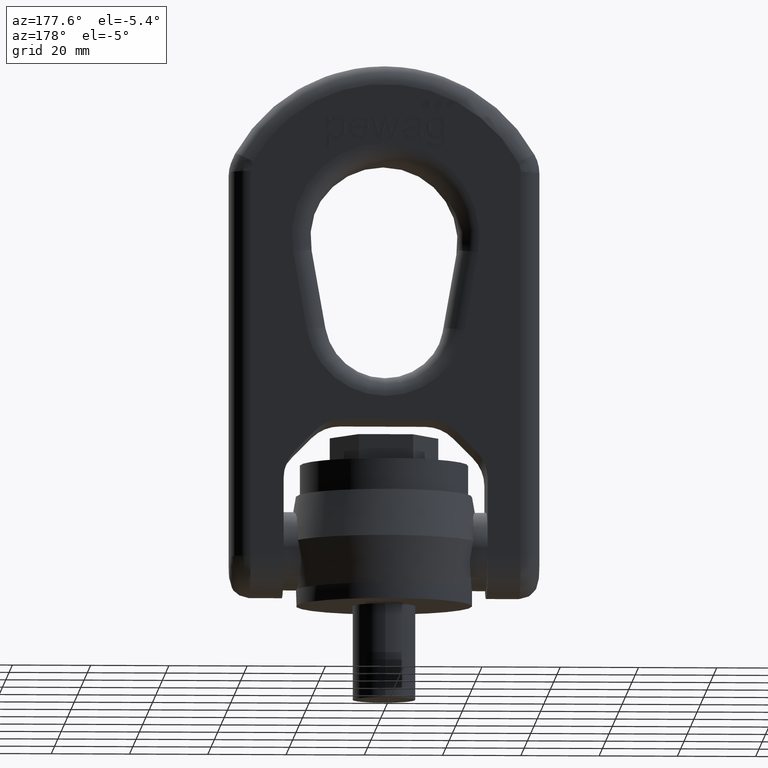
[diagram: clean part render]
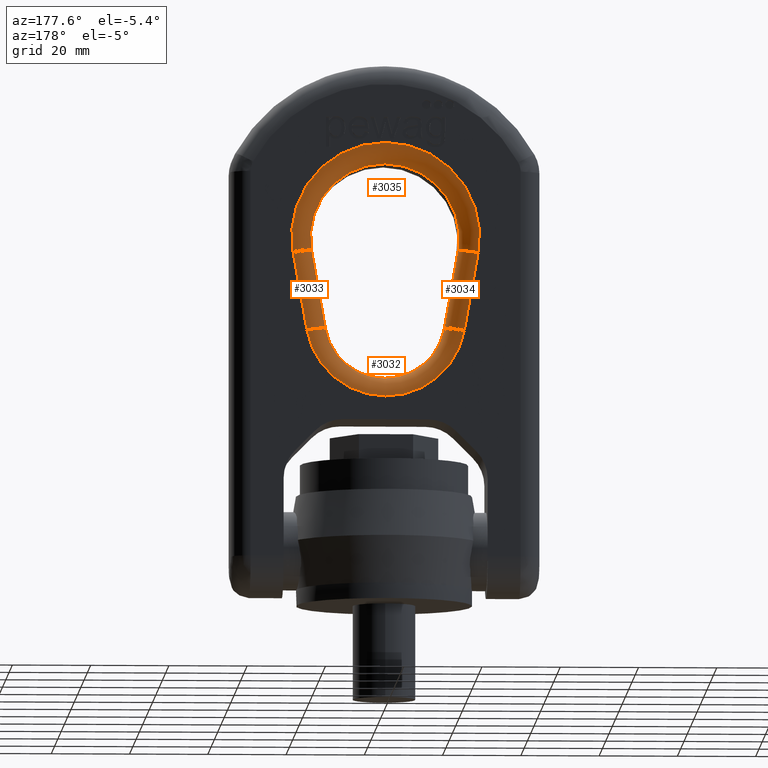
[diagram: same view with one multi-face feature highlighted, each face labeled with its STEP entity id]
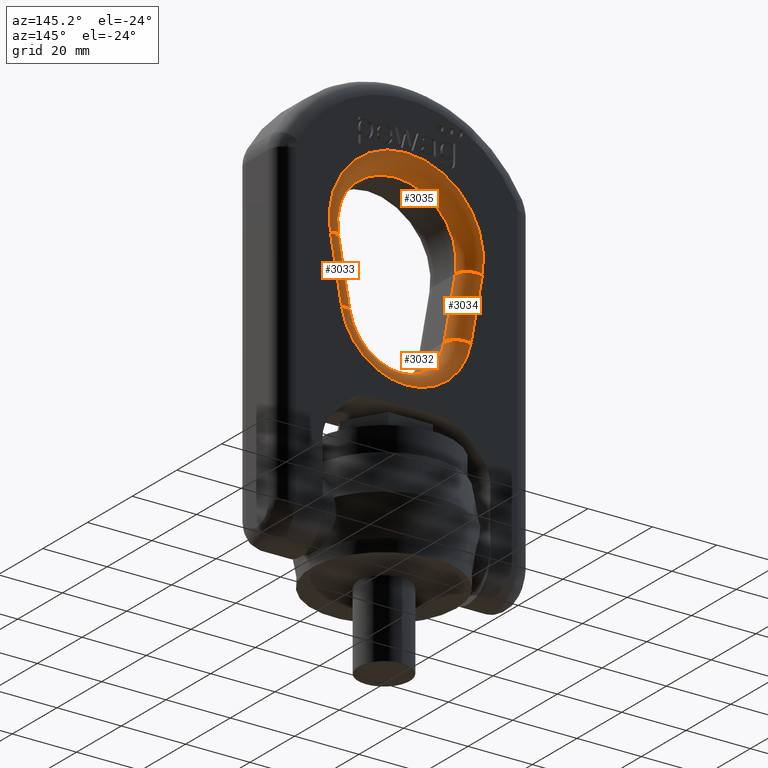
[diagram: same view with one multi-face feature highlighted, each face labeled with its STEP entity id]
A machine part, auxiliary view. The highlighted faces form ONE feature: a constant-radius fillet chain: 4 tangent blend faces with common blend radius 5 mm. The faces share edges in the B-rep.
A second angle (auxiliary view) of the same feature is appended — it is thin or edge-on in the first view.
Their STEP definitions:
[1] entity #3032 (Torus):
#203=TOROIDAL_SURFACE('',#6050,20.4276486835797,5.);
#2657=FACE_OUTER_BOUND('',#3425,.T.);
#3032=ADVANCED_FACE('',(#2657),#203,.T.);
#3425=EDGE_LOOP('',(#4665,#4666,#4667,#4668));
#4665=ORIENTED_EDGE('',*,*,#5741,.F.);
#4666=ORIENTED_EDGE('',*,*,#5372,.F.);
#4667=ORIENTED_EDGE('',*,*,#5742,.F.);
#4668=ORIENTED_EDGE('',*,*,#5266,.F.);
#4827=VERTEX_POINT('',#7396);
#4830=VERTEX_POINT('',#7401);
#4912=VERTEX_POINT('',#7723);
#4917=VERTEX_POINT('',#7737);
#5266=EDGE_CURVE('',#4830,#4827,#5776,.T.);
#5372=EDGE_CURVE('',#4917,#4912,#5793,.T.);
#5741=EDGE_CURVE('',#4912,#4830,#5819,.T.);
#5742=EDGE_CURVE('',#4827,#4917,#5820,.T.);
#5776=CIRCLE('',#5883,20.4276486835797);
#5793=CIRCLE('',#5907,15.4276486835797);
#5819=CIRCLE('',#6048,5.);
#5820=CIRCLE('',#6049,5.);
#5883=AXIS2_PLACEMENT_3D('',#7402,#6264,#6265);
#5907=AXIS2_PLACEMENT_3D('',#7769,#6367,#6368);
#6048=AXIS2_PLACEMENT_3D('',#9829,#6904,#6905);
#6049=AXIS2_PLACEMENT_3D('',#9830,#6906,#6907);
#6050=AXIS2_PLACEMENT_3D('',#9831,#6908,#6909);
#6264=DIRECTION('',(-2.34291072916505E-15,-1.,0.));
#6265=DIRECTION('',(-1.,2.37777034840012E-15,0.));
#6367=DIRECTION('',(2.34291072916505E-15,1.,0.));
#6368=DIRECTION('',(-1.,2.3612926209738E-15,0.));
#6904=DIRECTION('',(-0.17364817766693,2.40985256287531E-16,0.984807753012208));
#6905=DIRECTION('',(0.984807753012208,0.,0.17364817766693));
#6906=DIRECTION('',(0.17364817766693,-3.61477884431297E-16,0.984807753012208));
#6907=DIRECTION('',(0.984807753012208,0.,-0.17364817766693));
#6908=DIRECTION('',(2.34291072916505E-15,1.,0.));
#6909=DIRECTION('',(-1.,2.35365686642696E-15,0.));
#7396=CARTESIAN_POINT('',(20.117306799399,9.99999999999995,69.8804247156558));
#7401=CARTESIAN_POINT('',(-20.117306799399,10.,69.8804247156558));
#7402=CARTESIAN_POINT('',(1.17145536458252E-14,10.,73.4276486835797));
#7723=CARTESIAN_POINT('',(-15.1932680343379,5.00000000000005,70.7486656039905));
#7737=CARTESIAN_POINT('',(15.1932680343379,4.99999999999998,70.7486656039905));
#7769=CARTESIAN_POINT('',(0.,5.00000000000001,73.4276486835797));
#9829=CARTESIAN_POINT('',(-20.117306799399,5.00000000000005,69.8804247156558));
#9830=CARTESIAN_POINT('',(20.117306799399,4.99999999999995,69.8804247156558));
#9831=CARTESIAN_POINT('',(0.,5.,73.4276486835797));
[2] entity #3033 (Cylinder):
#1815=LINE('',#7395,#2123);
#1861=LINE('',#7736,#2169);
#2123=VECTOR('',#6260,1.);
#2169=VECTOR('',#6340,1.);
#2658=FACE_OUTER_BOUND('',#3426,.T.);
#3033=ADVANCED_FACE('',(#2658),#3065,.T.);
#3065=CYLINDRICAL_SURFACE('',#6052,5.);
#3426=EDGE_LOOP('',(#4669,#4670,#4671,#4672));
#4669=ORIENTED_EDGE('',*,*,#5742,.T.);
#4670=ORIENTED_EDGE('',*,*,#5357,.F.);
#4671=ORIENTED_EDGE('',*,*,#5743,.F.);
#4672=ORIENTED_EDGE('',*,*,#5263,.F.);
#4827=VERTEX_POINT('',#7396);
#4828=VERTEX_POINT('',#7397);
#4915=VERTEX_POINT('',#7731);
#4917=VERTEX_POINT('',#7737);
#5263=EDGE_CURVE('',#4827,#4828,#1815,.T.);
#5357=EDGE_CURVE('',#4915,#4917,#1861,.T.);
#5742=EDGE_CURVE('',#4827,#4917,#5820,.T.);
#5743=EDGE_CURVE('',#4828,#4915,#5821,.T.);
#5820=CIRCLE('',#6049,5.);
#5821=CIRCLE('',#6051,5.);
#6049=AXIS2_PLACEMENT_3D('',#9830,#6906,#6907);
#6051=AXIS2_PLACEMENT_3D('',#9832,#6910,#6911);
#6052=AXIS2_PLACEMENT_3D('',#9833,#6912,#6913);
#6260=DIRECTION('',(0.17364817766693,-4.0684217855581E-16,0.984807753012208));
#6340=DIRECTION('',(-0.17364817766693,4.0684217855581E-16,-0.984807753012208));
#6906=DIRECTION('',(0.17364817766693,-3.61477884431297E-16,0.984807753012208));
#6907=DIRECTION('',(0.984807753012208,0.,-0.17364817766693));
#6910=DIRECTION('',(0.17364817766693,-3.61477884431297E-16,0.984807753012208));
#6911=DIRECTION('',(0.984807753012208,0.,-0.17364817766693));
#6912=DIRECTION('',(-0.17364817766693,4.0684217855581E-16,-0.984807753012208));
#6913=DIRECTION('',(-0.984807753012208,0.,0.17364817766693));
#7395=CARTESIAN_POINT('',(23.635386072293,9.99999999999994,89.8324437359937));
#7396=CARTESIAN_POINT('',(20.117306799399,9.99999999999995,69.8804247156558));
#7397=CARTESIAN_POINT('',(23.635386072293,9.99999999999994,89.8324437359937));
#7731=CARTESIAN_POINT('',(18.711347307232,4.99999999999994,90.7006846243283));
#7736=CARTESIAN_POINT('',(15.1932680343379,4.99999999999995,70.7486656039905));
#7737=CARTESIAN_POINT('',(15.1932680343379,4.99999999999998,70.7486656039905));
#9830=CARTESIAN_POINT('',(20.117306799399,4.99999999999995,69.8804247156558));
#9832=CARTESIAN_POINT('',(23.635386072293,4.99999999999994,89.8324437359937));
#9833=CARTESIAN_POINT('',(23.6858340434335,4.99999999999994,90.1185483975596));
[3] entity #3035 (Torus):
#204=TOROIDAL_SURFACE('',#6055,24.,5.);
#2660=FACE_OUTER_BOUND('',#3428,.T.);
#3035=ADVANCED_FACE('',(#2660),#204,.T.);
#3428=EDGE_LOOP('',(#4677,#4678,#4679,#4680));
#4677=ORIENTED_EDGE('',*,*,#5743,.T.);
#4678=ORIENTED_EDGE('',*,*,#5354,.F.);
#4679=ORIENTED_EDGE('',*,*,#5744,.T.);
#4680=ORIENTED_EDGE('',*,*,#5264,.F.);
#4828=VERTEX_POINT('',#7397);
#4829=VERTEX_POINT('',#7399);
#4913=VERTEX_POINT('',#7725);
#4915=VERTEX_POINT('',#7731);
#5264=EDGE_CURVE('',#4828,#4829,#5775,.T.);
#5354=EDGE_CURVE('',#4913,#4915,#5787,.T.);
#5743=EDGE_CURVE('',#4828,#4915,#5821,.T.);
#5744=EDGE_CURVE('',#4913,#4829,#5822,.T.);
#5775=CIRCLE('',#5882,24.);
#5787=CIRCLE('',#5896,19.);
#5821=CIRCLE('',#6051,5.);
#5822=CIRCLE('',#6053,5.);
#5882=AXIS2_PLACEMENT_3D('',#7398,#6261,#6262);
#5896=AXIS2_PLACEMENT_3D('',#7730,#6333,#6334);
#6051=AXIS2_PLACEMENT_3D('',#9832,#6910,#6911);
#6053=AXIS2_PLACEMENT_3D('',#9834,#6914,#6915);
#6055=AXIS2_PLACEMENT_3D('',#9836,#6918,#6919);
#6261=DIRECTION('',(-2.34291072916505E-15,-1.,0.));
#6262=DIRECTION('',(-1.,2.31296463463574E-15,0.));
#6333=DIRECTION('',(2.34291072916505E-15,1.,0.));
#6334=DIRECTION('',(-1.,2.32818150723203E-15,0.));
#6910=DIRECTION('',(0.17364817766693,-3.61477884431297E-16,0.984807753012208));
#6911=DIRECTION('',(0.984807753012208,0.,-0.17364817766693));
#6914=DIRECTION('',(-0.17364817766693,2.40985256287532E-16,0.984807753012208));
#6915=DIRECTION('',(0.984807753012208,0.,0.17364817766693));
#6918=DIRECTION('',(2.34291072916505E-15,1.,0.));
#6919=DIRECTION('',(-1.,2.33290398493433E-15,0.));
#7397=CARTESIAN_POINT('',(23.635386072293,9.99999999999994,89.8324437359937));
#7398=CARTESIAN_POINT('',(1.17145536458252E-14,10.,94.));
#7399=CARTESIAN_POINT('',(-23.635386072293,10.0000000000001,89.8324437359937));
#7725=CARTESIAN_POINT('',(-18.711347307232,5.00000000000006,90.7006846243283));
#7730=CARTESIAN_POINT('',(0.,4.99999999999999,94.));
#7731=CARTESIAN_POINT('',(18.711347307232,4.99999999999994,90.7006846243283));
#9832=CARTESIAN_POINT('',(23.635386072293,4.99999999999994,89.8324437359937));
#9834=CARTESIAN_POINT('',(-23.635386072293,5.00000000000006,89.8324437359937));
#9836=CARTESIAN_POINT('',(0.,5.,94.));
[4] entity #3034 (Cylinder):
#1816=LINE('',#7400,#2124);
#1857=LINE('',#7724,#2165);
#2124=VECTOR('',#6263,1.);
#2165=VECTOR('',#6328,1.);
#2659=FACE_OUTER_BOUND('',#3427,.T.);
#3034=ADVANCED_FACE('',(#2659),#3066,.T.);
#3066=CYLINDRICAL_SURFACE('',#6054,5.);
#3427=EDGE_LOOP('',(#4673,#4674,#4675,#4676));
#4673=ORIENTED_EDGE('',*,*,#5741,.T.);
#4674=ORIENTED_EDGE('',*,*,#5265,.F.);
#4675=ORIENTED_EDGE('',*,*,#5744,.F.);
#4676=ORIENTED_EDGE('',*,*,#5351,.F.);
#4829=VERTEX_POINT('',#7399);
#4830=VERTEX_POINT('',#7401);
#4912=VERTEX_POINT('',#7723);
#4913=VERTEX_POINT('',#7725);
#5265=EDGE_CURVE('',#4829,#4830,#1816,.T.);
#5351=EDGE_CURVE('',#4912,#4913,#1857,.T.);
#5741=EDGE_CURVE('',#4912,#4830,#5819,.T.);
#5744=EDGE_CURVE('',#4913,#4829,#5822,.T.);
#5819=CIRCLE('',#6048,5.);
#5822=CIRCLE('',#6053,5.);
#6048=AXIS2_PLACEMENT_3D('',#9829,#6904,#6905);
#6053=AXIS2_PLACEMENT_3D('',#9834,#6914,#6915);
#6054=AXIS2_PLACEMENT_3D('',#9835,#6916,#6917);
#6263=DIRECTION('',(0.17364817766693,-4.0684217855581E-16,-0.984807753012208));
#6328=DIRECTION('',(-0.17364817766693,4.0684217855581E-16,0.984807753012208));
#6904=DIRECTION('',(-0.17364817766693,2.40985256287531E-16,0.984807753012208));
#6905=DIRECTION('',(0.984807753012208,0.,0.17364817766693));
#6914=DIRECTION('',(-0.17364817766693,2.40985256287532E-16,0.984807753012208));
#6915=DIRECTION('',(0.984807753012208,0.,0.17364817766693));
#6916=DIRECTION('',(-0.17364817766693,4.0684217855581E-16,0.984807753012208));
#6917=DIRECTION('',(0.984807753012208,0.,0.17364817766693));
#7399=CARTESIAN_POINT('',(-23.635386072293,10.0000000000001,89.8324437359937));
#7400=CARTESIAN_POINT('',(-20.117306799399,10.,69.8804247156558));
#7401=CARTESIAN_POINT('',(-20.117306799399,10.,69.8804247156558));
#7723=CARTESIAN_POINT('',(-15.1932680343379,5.00000000000005,70.7486656039905));
#7724=CARTESIAN_POINT('',(-18.711347307232,5.00000000000006,90.7006846243283));
#7725=CARTESIAN_POINT('',(-18.711347307232,5.00000000000006,90.7006846243283));
#9829=CARTESIAN_POINT('',(-20.117306799399,5.00000000000005,69.8804247156558));
#9834=CARTESIAN_POINT('',(-23.635386072293,5.00000000000006,89.8324437359937));
#9835=CARTESIAN_POINT('',(-23.6858340434335,5.00000000000006,90.1185483975596));